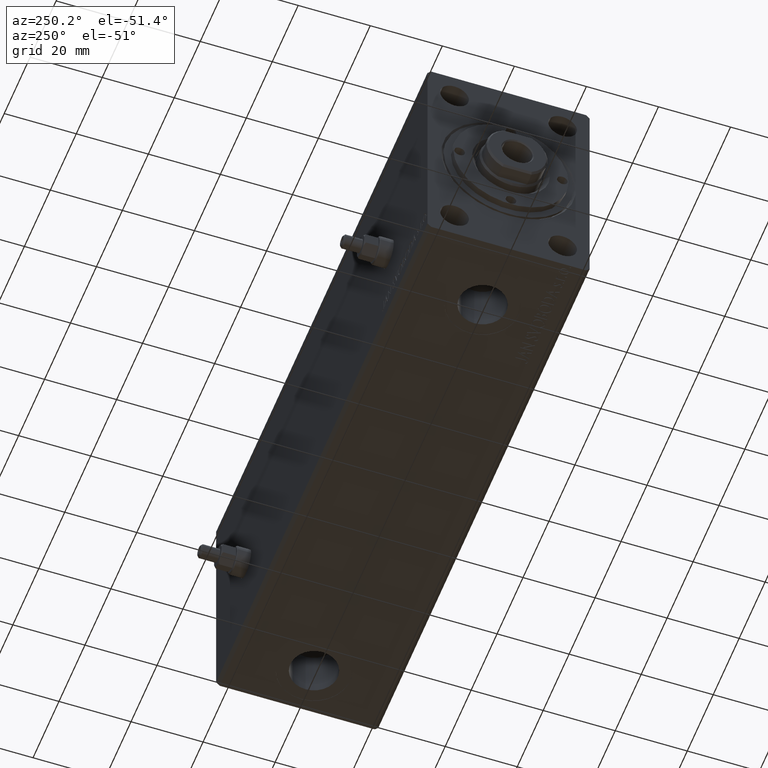
[diagram: clean part render]
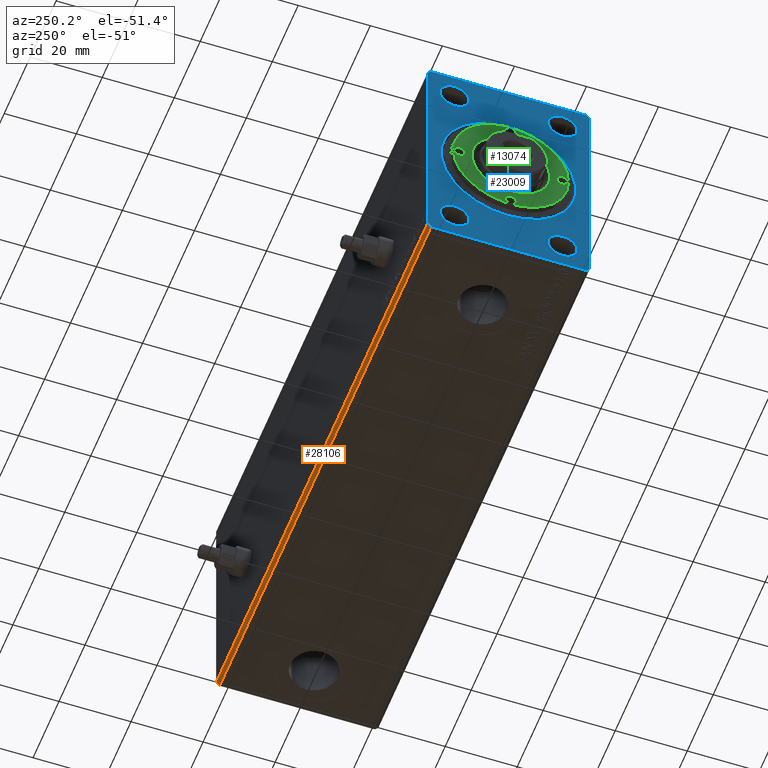
[diagram: same view with three faces highlighted in distinct colors, each labeled with its STEP entity id]
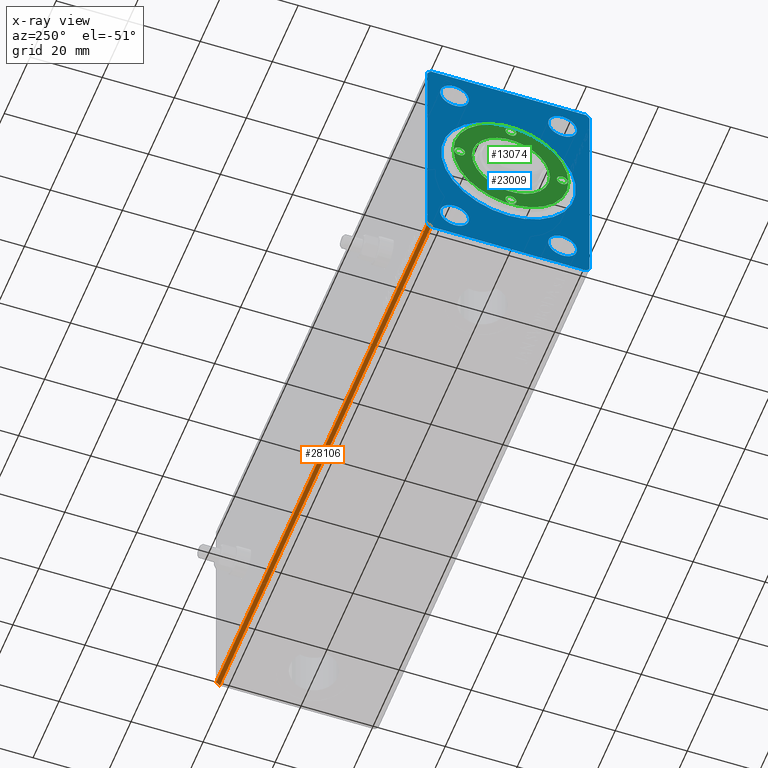
[diagram: x-ray of the same camera — body ghosted, the three highlighted faces saturated]
A machine part, auxiliary view with three faces highlighted in distinct colors.
The next image is the same camera in x-ray (body ghosted, the three faces saturated) — at least one of them is partly hidden behind the body in this view.
Their STEP definitions:

[orange] entity #28106 — the highlighted planar face has unit normal (0, -0.7071, 0.7071).
#664 = DIRECTION ( 'NONE',  ( 0.000000000000000000, -0.7071067811865475727, 0.7071067811865475727 ) ) ;
#1484 = LINE ( 'NONE', #4905, #3327 ) ;
#1808 = EDGE_CURVE ( 'NONE', #18338, #27748, #1484, .T. ) ;
#2689 = CARTESIAN_POINT ( 'NONE',  ( 0.000000000000000000, 21.49999999999999645, -32.50000000000000000 ) ) ;
#2834 = ORIENTED_EDGE ( 'NONE', *, *, #1808, .F. ) ;
#3327 = VECTOR ( 'NONE', #32790, 1000.000000000000114 ) ;
#4376 = LINE ( 'NONE', #32474, #33553 ) ;
#4905 = CARTESIAN_POINT ( 'NONE',  ( 163.0000000000000000, 21.49999999999999645, -32.50000000000000000 ) ) ;
#6110 = LINE ( 'NONE', #2689, #7008 ) ;
#7008 = VECTOR ( 'NONE', #13212, 1000.000000000000114 ) ;
#7434 = EDGE_CURVE ( 'NONE', #30496, #41775, #6110, .T. ) ;
#8503 = EDGE_LOOP ( 'NONE', ( #13450, #41674, #2834, #18356 ) ) ;
#8639 = DIRECTION ( 'NONE',  ( 0.000000000000000000, -0.7071067811865474617, -0.7071067811865474617 ) ) ;
#11695 = DIRECTION ( 'NONE',  ( -1.000000000000000000, -0.000000000000000000, -0.000000000000000000 ) ) ;
#13212 = DIRECTION ( 'NONE',  ( 0.000000000000000000, 0.7071067811865474617, 0.7071067811865474617 ) ) ;
#13375 = EDGE_CURVE ( 'NONE', #18338, #30496, #23449, .T. ) ;
#13450 = ORIENTED_EDGE ( 'NONE', *, *, #7434, .T. ) ;
#18338 = VERTEX_POINT ( 'NONE', #42154 ) ;
#18356 = ORIENTED_EDGE ( 'NONE', *, *, #13375, .T. ) ;
#19572 = DIRECTION ( 'NONE',  ( -1.000000000000000000, -0.000000000000000000, -0.000000000000000000 ) ) ;
#20258 = CARTESIAN_POINT ( 'NONE',  ( 163.0000000000000000, 22.49999999999999645, -31.50000000000000000 ) ) ;
#20318 = VECTOR ( 'NONE', #19572, 1000.000000000000000 ) ;
#21889 = CARTESIAN_POINT ( 'NONE',  ( 0.000000000000000000, 21.49999999999999645, -32.50000000000000000 ) ) ;
#23449 = LINE ( 'NONE', #37402, #20318 ) ;
#27748 = VERTEX_POINT ( 'NONE', #20258 ) ;
#28106 = ADVANCED_FACE ( 'NONE', ( #39951 ), #39498, .F. ) ;
#29229 = CARTESIAN_POINT ( 'NONE',  ( 163.0000000000000000, 21.49999999999999645, -32.50000000000000000 ) ) ;
#30496 = VERTEX_POINT ( 'NONE', #21889 ) ;
#32474 = CARTESIAN_POINT ( 'NONE',  ( 163.0000000000000000, 22.49999999999999645, -31.50000000000000000 ) ) ;
#32790 = DIRECTION ( 'NONE',  ( 0.000000000000000000, 0.7071067811865474617, 0.7071067811865474617 ) ) ;
#33553 = VECTOR ( 'NONE', #11695, 1000.000000000000000 ) ;
#37402 = CARTESIAN_POINT ( 'NONE',  ( 163.0000000000000000, 21.49999999999999645, -32.50000000000000000 ) ) ;
#39498 = PLANE ( 'NONE',  #44773 ) ;
#39951 = FACE_OUTER_BOUND ( 'NONE', #8503, .T. ) ;
#41364 = EDGE_CURVE ( 'NONE', #27748, #41775, #4376, .T. ) ;
#41674 = ORIENTED_EDGE ( 'NONE', *, *, #41364, .F. ) ;
#41775 = VERTEX_POINT ( 'NONE', #42385 ) ;
#42154 = CARTESIAN_POINT ( 'NONE',  ( 163.0000000000000000, 21.49999999999999645, -32.50000000000000000 ) ) ;
#42385 = CARTESIAN_POINT ( 'NONE',  ( 0.000000000000000000, 22.49999999999999645, -31.50000000000000000 ) ) ;
#44773 = AXIS2_PLACEMENT_3D ( 'NONE', #29229, #664, #8639 ) ;

[blue] entity #23009 — the highlighted planar face has unit normal (1, 0, 0).
#43 = LINE ( 'NONE', #30511, #8371 ) ;
#87 = EDGE_LOOP ( 'NONE', ( #25024, #16160, #17624, #20711, #13297, #37078, #29994, #3901 ) ) ;
#221 = CARTESIAN_POINT ( 'NONE',  ( 0.000000000000000000, 21.49999999999999645, 32.50000000000000000 ) ) ;
#255 = EDGE_CURVE ( 'NONE', #26955, #40361, #43, .T. ) ;
#321 = DIRECTION ( 'NONE',  ( 0.000000000000000000, 0.000000000000000000, -1.000000000000000000 ) ) ;
#484 = CIRCLE ( 'NONE', #9251, 4.000000000000000000 ) ;
#488 = LINE ( 'NONE', #11216, #2013 ) ;
#886 = DIRECTION ( 'NONE',  ( 0.000000000000000000, 0.000000000000000000, -1.000000000000000000 ) ) ;
#1151 = FACE_BOUND ( 'NONE', #20377, .T. ) ;
#1441 = LINE ( 'NONE', #15391, #44135 ) ;
#2013 = VECTOR ( 'NONE', #35453, 1000.000000000000000 ) ;
#2689 = CARTESIAN_POINT ( 'NONE',  ( 0.000000000000000000, 21.49999999999999645, -32.50000000000000000 ) ) ;
#2823 = DIRECTION ( 'NONE',  ( -1.000000000000000000, -0.000000000000000000, -0.000000000000000000 ) ) ;
#2852 = AXIS2_PLACEMENT_3D ( 'NONE', #10622, #3768, #17712 ) ;
#3053 = DIRECTION ( 'NONE',  ( -1.000000000000000000, -0.000000000000000000, -0.000000000000000000 ) ) ;
#3361 = LINE ( 'NONE', #24831, #8461 ) ;
#3478 = DIRECTION ( 'NONE',  ( 0.000000000000000000, -0.7071067811865474617, 0.7071067811865474617 ) ) ;
#3611 = CIRCLE ( 'NONE', #2852, 4.000000000000000000 ) ;
#3768 = DIRECTION ( 'NONE',  ( -1.000000000000000000, -0.000000000000000000, -0.000000000000000000 ) ) ;
#3806 = EDGE_CURVE ( 'NONE', #24019, #9859, #10566, .T. ) ;
#3846 = ORIENTED_EDGE ( 'NONE', *, *, #13266, .F. ) ;
#3901 = ORIENTED_EDGE ( 'NONE', *, *, #3971, .F. ) ;
#3971 = EDGE_CURVE ( 'NONE', #31850, #9355, #28103, .T. ) ;
#4132 = ORIENTED_EDGE ( 'NONE', *, *, #16056, .T. ) ;
#4252 = DIRECTION ( 'NONE',  ( 0.000000000000000000, 5.507058653894625853E-17, -1.000000000000000000 ) ) ;
#4309 = DIRECTION ( 'NONE',  ( 1.000000000000000000, 0.000000000000000000, 0.000000000000000000 ) ) ;
#4513 = DIRECTION ( 'NONE',  ( 0.000000000000000000, 0.000000000000000000, 1.000000000000000000 ) ) ;
#4567 = VERTEX_POINT ( 'NONE', #30986 ) ;
#4742 = VERTEX_POINT ( 'NONE', #9887 ) ;
#5034 = FACE_BOUND ( 'NONE', #10544, .T. ) ;
#5102 = AXIS2_PLACEMENT_3D ( 'NONE', #22397, #31637, #321 ) ;
#5137 = VERTEX_POINT ( 'NONE', #41613 ) ;
#5489 = PLANE ( 'NONE',  #5102 ) ;
#5714 = EDGE_CURVE ( 'NONE', #4742, #4567, #39788, .T. ) ;
#6019 = CARTESIAN_POINT ( 'NONE',  ( 3.061616997868395467E-16, 15.00000000000000355, 25.00000000000000000 ) ) ;
#6110 = LINE ( 'NONE', #2689, #7008 ) ;
#7008 = VECTOR ( 'NONE', #13212, 1000.000000000000114 ) ;
#7434 = EDGE_CURVE ( 'NONE', #30496, #41775, #6110, .T. ) ;
#7513 = EDGE_CURVE ( 'NONE', #25467, #26955, #3361, .T. ) ;
#8068 = DIRECTION ( 'NONE',  ( 0.000000000000000000, 0.000000000000000000, 1.000000000000000000 ) ) ;
#8197 = DIRECTION ( 'NONE',  ( 0.000000000000000000, 0.000000000000000000, -1.000000000000000000 ) ) ;
#8306 = CARTESIAN_POINT ( 'NONE',  ( 0.000000000000000000, -21.50000000000001421, 32.50000000000000000 ) ) ;
#8371 = VECTOR ( 'NONE', #23638, 1000.000000000000114 ) ;
#8420 = DIRECTION ( 'NONE',  ( 1.000000000000000000, 0.000000000000000000, 0.000000000000000000 ) ) ;
#8461 = VECTOR ( 'NONE', #4252, 1000.000000000000000 ) ;
#8553 = EDGE_CURVE ( 'NONE', #28303, #19467, #484, .T. ) ;
#8585 = DIRECTION ( 'NONE',  ( 0.000000000000000000, 0.000000000000000000, 1.000000000000000000 ) ) ;
#8886 = DIRECTION ( 'NONE',  ( -1.000000000000000000, -0.000000000000000000, -0.000000000000000000 ) ) ;
#8924 = FACE_BOUND ( 'NONE', #32165, .T. ) ;
#9251 = AXIS2_PLACEMENT_3D ( 'NONE', #9266, #37161, #8585 ) ;
#9266 = CARTESIAN_POINT ( 'NONE',  ( 3.061616997868395467E-16, -14.99999999999999645, -24.99999999999999645 ) ) ;
#9355 = VERTEX_POINT ( 'NONE', #10181 ) ;
#9678 = DIRECTION ( 'NONE',  ( 0.000000000000000000, 0.000000000000000000, 1.000000000000000000 ) ) ;
#9859 = VERTEX_POINT ( 'NONE', #23069 ) ;
#9887 = CARTESIAN_POINT ( 'NONE',  ( 3.061616997868395467E-16, 15.00000000000000355, 29.00000000000000000 ) ) ;
#10006 = EDGE_CURVE ( 'NONE', #37914, #21491, #31905, .T. ) ;
#10167 = CIRCLE ( 'NONE', #35720, 18.69999999999996732 ) ;
#10181 = CARTESIAN_POINT ( 'NONE',  ( 0.000000000000000000, -21.50000000000001421, 32.50000000000000000 ) ) ;
#10544 = EDGE_LOOP ( 'NONE', ( #37149, #31407 ) ) ;
#10566 = CIRCLE ( 'NONE', #44132, 4.000000000000000000 ) ;
#10622 = CARTESIAN_POINT ( 'NONE',  ( 3.061616997868395467E-16, 15.00000000000000355, 25.00000000000000000 ) ) ;
#11216 = CARTESIAN_POINT ( 'NONE',  ( 0.000000000000000000, -21.50000000000001776, -32.50000000000000711 ) ) ;
#11611 = CARTESIAN_POINT ( 'NONE',  ( 3.061616997868395467E-16, 15.00000000000000355, -24.99999999999999289 ) ) ;
#11655 = EDGE_CURVE ( 'NONE', #40361, #30496, #488, .T. ) ;
#12203 = LINE ( 'NONE', #8306, #45193 ) ;
#13212 = DIRECTION ( 'NONE',  ( 0.000000000000000000, 0.7071067811865474617, 0.7071067811865474617 ) ) ;
#13266 = EDGE_CURVE ( 'NONE', #19467, #28303, #32743, .T. ) ;
#13297 = ORIENTED_EDGE ( 'NONE', *, *, #255, .F. ) ;
#13775 = CARTESIAN_POINT ( 'NONE',  ( 3.061616997868395467E-16, -14.99999999999999645, 28.99999999999999645 ) ) ;
#13785 = EDGE_CURVE ( 'NONE', #9859, #24019, #43660, .T. ) ;
#15391 = CARTESIAN_POINT ( 'NONE',  ( 0.000000000000000000, 22.49999999999999645, -31.50000000000000000 ) ) ;
#15929 = DIRECTION ( 'NONE',  ( -1.000000000000000000, -0.000000000000000000, -0.000000000000000000 ) ) ;
#16056 = EDGE_CURVE ( 'NONE', #21158, #19188, #10167, .T. ) ;
#16160 = ORIENTED_EDGE ( 'NONE', *, *, #31122, .F. ) ;
#16479 = CARTESIAN_POINT ( 'NONE',  ( 0.000000000000000000, -22.50000000000001776, 31.50000000000000000 ) ) ;
#16537 = CARTESIAN_POINT ( 'NONE',  ( -1.084202172485504434E-16, 0.000000000000000000, 18.69999999999996732 ) ) ;
#16759 = CARTESIAN_POINT ( 'NONE',  ( 0.000000000000000000, -21.50000000000001776, -32.50000000000000711 ) ) ;
#17624 = ORIENTED_EDGE ( 'NONE', *, *, #7434, .F. ) ;
#17712 = DIRECTION ( 'NONE',  ( 0.000000000000000000, 0.000000000000000000, 1.000000000000000000 ) ) ;
#17883 = CARTESIAN_POINT ( 'NONE',  ( 3.061616997868395467E-16, 15.00000000000000355, -20.99999999999999289 ) ) ;
#18472 = ORIENTED_EDGE ( 'NONE', *, *, #8553, .F. ) ;
#18476 = CARTESIAN_POINT ( 'NONE',  ( 0.000000000000000000, 0.000000000000000000, 0.000000000000000000 ) ) ;
#18606 = EDGE_CURVE ( 'NONE', #19188, #21158, #30571, .T. ) ;
#18905 = VECTOR ( 'NONE', #3478, 1000.000000000000114 ) ;
#18915 = DIRECTION ( 'NONE',  ( -1.000000000000000000, -0.000000000000000000, -0.000000000000000000 ) ) ;
#19188 = VERTEX_POINT ( 'NONE', #16537 ) ;
#19467 = VERTEX_POINT ( 'NONE', #37061 ) ;
#19615 = CARTESIAN_POINT ( 'NONE',  ( -1.084202172485504434E-16, 2.290089514405546166E-15, -18.69999999999996732 ) ) ;
#19843 = CARTESIAN_POINT ( 'NONE',  ( 3.061616997868395467E-16, 15.00000000000000355, -24.99999999999999289 ) ) ;
#20377 = EDGE_LOOP ( 'NONE', ( #40672, #29543 ) ) ;
#20711 = ORIENTED_EDGE ( 'NONE', *, *, #11655, .F. ) ;
#21158 = VERTEX_POINT ( 'NONE', #19615 ) ;
#21491 = VERTEX_POINT ( 'NONE', #17883 ) ;
#21889 = CARTESIAN_POINT ( 'NONE',  ( 0.000000000000000000, 21.49999999999999645, -32.50000000000000000 ) ) ;
#22327 = EDGE_LOOP ( 'NONE', ( #3846, #18472 ) ) ;
#22357 = DIRECTION ( 'NONE',  ( 0.000000000000000000, 0.000000000000000000, 1.000000000000000000 ) ) ;
#22397 = CARTESIAN_POINT ( 'NONE',  ( 0.000000000000000000, 0.000000000000000000, 0.000000000000000000 ) ) ;
#22852 = FACE_BOUND ( 'NONE', #26560, .T. ) ;
#23009 = ADVANCED_FACE ( 'NONE', ( #5034, #32462, #1151, #8924, #22852, #36808 ), #5489, .F. ) ;
#23069 = CARTESIAN_POINT ( 'NONE',  ( 3.061616997868395467E-16, -14.99999999999999645, 20.99999999999999645 ) ) ;
#23248 = AXIS2_PLACEMENT_3D ( 'NONE', #43333, #15929, #29188 ) ;
#23460 = ORIENTED_EDGE ( 'NONE', *, *, #18606, .T. ) ;
#23638 = DIRECTION ( 'NONE',  ( 0.000000000000000000, 0.7071067811865451302, -0.7071067811865500152 ) ) ;
#23845 = CARTESIAN_POINT ( 'NONE',  ( 3.061616997868395467E-16, -14.99999999999999645, 24.99999999999999645 ) ) ;
#24019 = VERTEX_POINT ( 'NONE', #13775 ) ;
#24048 = LINE ( 'NONE', #32037, #18905 ) ;
#24156 = CARTESIAN_POINT ( 'NONE',  ( 3.061616997868395467E-16, -14.99999999999999645, -28.99999999999999645 ) ) ;
#24680 = CARTESIAN_POINT ( 'NONE',  ( 3.061616997868395467E-16, 15.00000000000000355, -28.99999999999999289 ) ) ;
#24831 = CARTESIAN_POINT ( 'NONE',  ( 0.000000000000000000, -22.50000000000001776, 31.50000000000000000 ) ) ;
#24886 = DIRECTION ( 'NONE',  ( 0.000000000000000000, -1.000000000000000000, 0.000000000000000000 ) ) ;
#25024 = ORIENTED_EDGE ( 'NONE', *, *, #39452, .F. ) ;
#25467 = VERTEX_POINT ( 'NONE', #16479 ) ;
#25663 = DIRECTION ( 'NONE',  ( 0.000000000000000000, 0.000000000000000000, 1.000000000000000000 ) ) ;
#26360 = DIRECTION ( 'NONE',  ( 0.000000000000000000, -0.7071067811865474617, -0.7071067811865474617 ) ) ;
#26560 = EDGE_LOOP ( 'NONE', ( #23460, #4132 ) ) ;
#26955 = VERTEX_POINT ( 'NONE', #31897 ) ;
#28103 = LINE ( 'NONE', #221, #28831 ) ;
#28303 = VERTEX_POINT ( 'NONE', #24156 ) ;
#28831 = VECTOR ( 'NONE', #24886, 1000.000000000000000 ) ;
#29188 = DIRECTION ( 'NONE',  ( 0.000000000000000000, 0.000000000000000000, 1.000000000000000000 ) ) ;
#29543 = ORIENTED_EDGE ( 'NONE', *, *, #10006, .F. ) ;
#29994 = ORIENTED_EDGE ( 'NONE', *, *, #40144, .F. ) ;
#30496 = VERTEX_POINT ( 'NONE', #21889 ) ;
#30511 = CARTESIAN_POINT ( 'NONE',  ( 0.000000000000000000, -22.50000000000001421, -31.50000000000000711 ) ) ;
#30571 = CIRCLE ( 'NONE', #42972, 18.69999999999996732 ) ;
#30676 = ORIENTED_EDGE ( 'NONE', *, *, #3806, .F. ) ;
#30986 = CARTESIAN_POINT ( 'NONE',  ( 3.061616997868395467E-16, 15.00000000000000355, 21.00000000000000000 ) ) ;
#31122 = EDGE_CURVE ( 'NONE', #41775, #5137, #1441, .T. ) ;
#31407 = ORIENTED_EDGE ( 'NONE', *, *, #40126, .F. ) ;
#31636 = CARTESIAN_POINT ( 'NONE',  ( 3.061616997868395467E-16, -14.99999999999999645, 24.99999999999999645 ) ) ;
#31637 = DIRECTION ( 'NONE',  ( 1.000000000000000000, 0.000000000000000000, 0.000000000000000000 ) ) ;
#31850 = VERTEX_POINT ( 'NONE', #32805 ) ;
#31897 = CARTESIAN_POINT ( 'NONE',  ( 0.000000000000000000, -22.50000000000001421, -31.50000000000000711 ) ) ;
#31905 = CIRCLE ( 'NONE', #37025, 4.000000000000000000 ) ;
#32037 = CARTESIAN_POINT ( 'NONE',  ( 0.000000000000000000, 22.49999999999999645, 31.50000000000000000 ) ) ;
#32165 = EDGE_LOOP ( 'NONE', ( #30676, #40436 ) ) ;
#32462 = FACE_BOUND ( 'NONE', #22327, .T. ) ;
#32743 = CIRCLE ( 'NONE', #23248, 4.000000000000000000 ) ;
#32805 = CARTESIAN_POINT ( 'NONE',  ( 0.000000000000000000, 21.49999999999999645, 32.50000000000000000 ) ) ;
#33872 = CIRCLE ( 'NONE', #40422, 4.000000000000000000 ) ;
#34937 = AXIS2_PLACEMENT_3D ( 'NONE', #23845, #3053, #37346 ) ;
#35453 = DIRECTION ( 'NONE',  ( 0.000000000000000000, 1.000000000000000000, 1.613696256722610912E-16 ) ) ;
#35720 = AXIS2_PLACEMENT_3D ( 'NONE', #18476, #4309, #886 ) ;
#35961 = DIRECTION ( 'NONE',  ( -1.000000000000000000, -0.000000000000000000, -0.000000000000000000 ) ) ;
#36808 = FACE_OUTER_BOUND ( 'NONE', #87, .T. ) ;
#37025 = AXIS2_PLACEMENT_3D ( 'NONE', #11611, #18915, #4513 ) ;
#37061 = CARTESIAN_POINT ( 'NONE',  ( 3.061616997868395467E-16, -14.99999999999999645, -20.99999999999999645 ) ) ;
#37078 = ORIENTED_EDGE ( 'NONE', *, *, #7513, .F. ) ;
#37149 = ORIENTED_EDGE ( 'NONE', *, *, #5714, .F. ) ;
#37161 = DIRECTION ( 'NONE',  ( -1.000000000000000000, -0.000000000000000000, -0.000000000000000000 ) ) ;
#37346 = DIRECTION ( 'NONE',  ( 0.000000000000000000, 0.000000000000000000, 1.000000000000000000 ) ) ;
#37914 = VERTEX_POINT ( 'NONE', #24680 ) ;
#39452 = EDGE_CURVE ( 'NONE', #5137, #31850, #24048, .T. ) ;
#39508 = CARTESIAN_POINT ( 'NONE',  ( 0.000000000000000000, 0.000000000000000000, 0.000000000000000000 ) ) ;
#39788 = CIRCLE ( 'NONE', #42719, 4.000000000000000000 ) ;
#40126 = EDGE_CURVE ( 'NONE', #4567, #4742, #3611, .T. ) ;
#40144 = EDGE_CURVE ( 'NONE', #9355, #25467, #12203, .T. ) ;
#40361 = VERTEX_POINT ( 'NONE', #16759 ) ;
#40422 = AXIS2_PLACEMENT_3D ( 'NONE', #19843, #8886, #22357 ) ;
#40436 = ORIENTED_EDGE ( 'NONE', *, *, #13785, .F. ) ;
#40672 = ORIENTED_EDGE ( 'NONE', *, *, #44565, .F. ) ;
#41613 = CARTESIAN_POINT ( 'NONE',  ( 0.000000000000000000, 22.49999999999999645, 31.50000000000000000 ) ) ;
#41775 = VERTEX_POINT ( 'NONE', #42385 ) ;
#42385 = CARTESIAN_POINT ( 'NONE',  ( 0.000000000000000000, 22.49999999999999645, -31.50000000000000000 ) ) ;
#42719 = AXIS2_PLACEMENT_3D ( 'NONE', #6019, #2823, #9678 ) ;
#42972 = AXIS2_PLACEMENT_3D ( 'NONE', #39508, #8420, #8197 ) ;
#43333 = CARTESIAN_POINT ( 'NONE',  ( 3.061616997868395467E-16, -14.99999999999999645, -24.99999999999999645 ) ) ;
#43660 = CIRCLE ( 'NONE', #34937, 4.000000000000000000 ) ;
#44132 = AXIS2_PLACEMENT_3D ( 'NONE', #31636, #35961, #8068 ) ;
#44135 = VECTOR ( 'NONE', #25663, 1000.000000000000000 ) ;
#44565 = EDGE_CURVE ( 'NONE', #21491, #37914, #33872, .T. ) ;
#45193 = VECTOR ( 'NONE', #26360, 1000.000000000000114 ) ;

[green] entity #13074 — the highlighted planar face has unit normal (-1, 0, 0).
#401 = FACE_BOUND ( 'NONE', #14155, .T. ) ;
#1109 = CARTESIAN_POINT ( 'NONE',  ( -1.499999999999996891, -14.25000000000000000, 6.999999999999999112 ) ) ;
#1666 = ORIENTED_EDGE ( 'NONE', *, *, #4928, .T. ) ;
#1862 = DIRECTION ( 'NONE',  ( 1.000000000000000000, 0.000000000000000000, 0.000000000000000000 ) ) ;
#2278 = VERTEX_POINT ( 'NONE', #37195 ) ;
#3328 = DIRECTION ( 'NONE',  ( -0.000000000000000000, -0.000000000000000000, 1.000000000000000000 ) ) ;
#3333 = CARTESIAN_POINT ( 'NONE',  ( -14.25000000000000000, 0.000000000000000000, 6.999999999999999112 ) ) ;
#3870 = DIRECTION ( 'NONE',  ( -0.000000000000000000, -0.000000000000000000, 1.000000000000000000 ) ) ;
#4014 = VERTEX_POINT ( 'NONE', #1109 ) ;
#4276 = FACE_BOUND ( 'NONE', #13410, .T. ) ;
#4401 = CARTESIAN_POINT ( 'NONE',  ( 14.25000000000000000, 0.000000000000000000, 6.999999999999999112 ) ) ;
#4557 = ORIENTED_EDGE ( 'NONE', *, *, #24966, .T. ) ;
#4743 = AXIS2_PLACEMENT_3D ( 'NONE', #33165, #19224, #1862 ) ;
#4928 = EDGE_CURVE ( 'NONE', #9865, #38810, #20811, .T. ) ;
#5032 = AXIS2_PLACEMENT_3D ( 'NONE', #4401, #22207, #42345 ) ;
#5035 = AXIS2_PLACEMENT_3D ( 'NONE', #3333, #39971, #17281 ) ;
#5200 = EDGE_CURVE ( 'NONE', #4014, #30998, #17913, .T. ) ;
#6421 = CARTESIAN_POINT ( 'NONE',  ( 15.74999999999999645, 0.000000000000000000, 6.999999999999999112 ) ) ;
#6426 = ORIENTED_EDGE ( 'NONE', *, *, #22208, .F. ) ;
#6509 = AXIS2_PLACEMENT_3D ( 'NONE', #36647, #35740, #8072 ) ;
#6538 = AXIS2_PLACEMENT_3D ( 'NONE', #39063, #7752, #21686 ) ;
#6559 = CARTESIAN_POINT ( 'NONE',  ( 10.79999999999997584, 0.000000000000000000, 6.999999999999999112 ) ) ;
#7701 = FACE_BOUND ( 'NONE', #34867, .T. ) ;
#7751 = CARTESIAN_POINT ( 'NONE',  ( 0.000000000000000000, 0.000000000000000000, 6.999999999999999112 ) ) ;
#7752 = DIRECTION ( 'NONE',  ( -0.000000000000000000, -0.000000000000000000, 1.000000000000000000 ) ) ;
#8027 = EDGE_CURVE ( 'NONE', #37129, #29267, #33304, .T. ) ;
#8036 = AXIS2_PLACEMENT_3D ( 'NONE', #10411, #3328, #17277 ) ;
#8072 = DIRECTION ( 'NONE',  ( 1.000000000000000000, 0.000000000000000000, 0.000000000000000000 ) ) ;
#8104 = CIRCLE ( 'NONE', #43887, 1.499999999999996225 ) ;
#8615 = VERTEX_POINT ( 'NONE', #13168 ) ;
#8628 = AXIS2_PLACEMENT_3D ( 'NONE', #11367, #42664, #25295 ) ;
#8736 = CIRCLE ( 'NONE', #21175, 16.00000000000000000 ) ;
#9428 = ORIENTED_EDGE ( 'NONE', *, *, #25569, .F. ) ;
#9865 = VERTEX_POINT ( 'NONE', #16226 ) ;
#9905 = DIRECTION ( 'NONE',  ( 1.000000000000000000, 0.000000000000000000, 0.000000000000000000 ) ) ;
#10411 = CARTESIAN_POINT ( 'NONE',  ( 0.000000000000000000, -14.25000000000000000, 6.999999999999999112 ) ) ;
#11367 = CARTESIAN_POINT ( 'NONE',  ( 0.000000000000000000, 0.000000000000000000, 6.999999999999999112 ) ) ;
#11869 = DIRECTION ( 'NONE',  ( 1.000000000000000000, 0.000000000000000000, 0.000000000000000000 ) ) ;
#11909 = CIRCLE ( 'NONE', #29431, 1.499999999999996225 ) ;
#13074 = ADVANCED_FACE ( 'NONE', ( #7701, #31277, #401, #4276, #14801, #27843 ), #41999, .T. ) ;
#13088 = ORIENTED_EDGE ( 'NONE', *, *, #27131, .F. ) ;
#13112 = CIRCLE ( 'NONE', #6538, 1.499999999999996891 ) ;
#13168 = CARTESIAN_POINT ( 'NONE',  ( -16.00000000000000000, 0.000000000000000000, 6.999999999999999112 ) ) ;
#13410 = EDGE_LOOP ( 'NONE', ( #6426, #18619 ) ) ;
#13605 = AXIS2_PLACEMENT_3D ( 'NONE', #41599, #3870, #31752 ) ;
#13808 = DIRECTION ( 'NONE',  ( -0.000000000000000000, -0.000000000000000000, 1.000000000000000000 ) ) ;
#14155 = EDGE_LOOP ( 'NONE', ( #17579, #9428 ) ) ;
#14183 = VERTEX_POINT ( 'NONE', #6421 ) ;
#14270 = AXIS2_PLACEMENT_3D ( 'NONE', #25744, #16155, #30097 ) ;
#14801 = FACE_BOUND ( 'NONE', #20773, .T. ) ;
#15513 = EDGE_CURVE ( 'NONE', #21379, #8615, #24034, .T. ) ;
#16155 = DIRECTION ( 'NONE',  ( -0.000000000000000000, -0.000000000000000000, 1.000000000000000000 ) ) ;
#16226 = CARTESIAN_POINT ( 'NONE',  ( -10.79999999999997584, 1.322618543079138535E-15, 6.999999999999999112 ) ) ;
#16714 = EDGE_CURVE ( 'NONE', #8615, #21379, #8736, .T. ) ;
#17277 = DIRECTION ( 'NONE',  ( 1.000000000000000000, 0.000000000000000000, 0.000000000000000000 ) ) ;
#17281 = DIRECTION ( 'NONE',  ( 1.000000000000000000, 0.000000000000000000, 0.000000000000000000 ) ) ;
#17579 = ORIENTED_EDGE ( 'NONE', *, *, #34417, .F. ) ;
#17773 = ORIENTED_EDGE ( 'NONE', *, *, #8027, .F. ) ;
#17913 = CIRCLE ( 'NONE', #14270, 1.499999999999996891 ) ;
#18619 = ORIENTED_EDGE ( 'NONE', *, *, #5200, .F. ) ;
#19224 = DIRECTION ( 'NONE',  ( -0.000000000000000000, -0.000000000000000000, -1.000000000000000000 ) ) ;
#19654 = EDGE_CURVE ( 'NONE', #31624, #27611, #30606, .T. ) ;
#19729 = CIRCLE ( 'NONE', #8036, 1.499999999999996891 ) ;
#20502 = CIRCLE ( 'NONE', #39488, 10.79999999999997584 ) ;
#20773 = EDGE_LOOP ( 'NONE', ( #4557, #1666 ) ) ;
#20811 = CIRCLE ( 'NONE', #4743, 10.79999999999997584 ) ;
#21175 = AXIS2_PLACEMENT_3D ( 'NONE', #24669, #21247, #31986 ) ;
#21247 = DIRECTION ( 'NONE',  ( 0.000000000000000000, 0.000000000000000000, 1.000000000000000000 ) ) ;
#21379 = VERTEX_POINT ( 'NONE', #28676 ) ;
#21686 = DIRECTION ( 'NONE',  ( 1.000000000000000000, 0.000000000000000000, 0.000000000000000000 ) ) ;
#21915 = DIRECTION ( 'NONE',  ( 1.000000000000000000, 0.000000000000000000, 0.000000000000000000 ) ) ;
#22207 = DIRECTION ( 'NONE',  ( -0.000000000000000000, -0.000000000000000000, 1.000000000000000000 ) ) ;
#22208 = EDGE_CURVE ( 'NONE', #30998, #4014, #19729, .T. ) ;
#24034 = CIRCLE ( 'NONE', #6509, 16.00000000000000000 ) ;
#24669 = CARTESIAN_POINT ( 'NONE',  ( 0.000000000000000000, 0.000000000000000000, 6.999999999999999112 ) ) ;
#24918 = ORIENTED_EDGE ( 'NONE', *, *, #15513, .T. ) ;
#24966 = EDGE_CURVE ( 'NONE', #38810, #9865, #20502, .T. ) ;
#25295 = DIRECTION ( 'NONE',  ( 1.000000000000000000, 0.000000000000000000, -0.000000000000000000 ) ) ;
#25569 = EDGE_CURVE ( 'NONE', #2278, #14183, #8104, .T. ) ;
#25744 = CARTESIAN_POINT ( 'NONE',  ( 0.000000000000000000, -14.25000000000000000, 6.999999999999999112 ) ) ;
#27131 = EDGE_CURVE ( 'NONE', #27611, #31624, #11909, .T. ) ;
#27611 = VERTEX_POINT ( 'NONE', #40841 ) ;
#27653 = CIRCLE ( 'NONE', #5032, 1.499999999999996225 ) ;
#27843 = FACE_OUTER_BOUND ( 'NONE', #28913, .T. ) ;
#28566 = CARTESIAN_POINT ( 'NONE',  ( -1.499999999999996891, 14.25000000000000000, 6.999999999999999112 ) ) ;
#28676 = CARTESIAN_POINT ( 'NONE',  ( 16.00000000000000000, 1.959434878635765131E-15, 6.999999999999999112 ) ) ;
#28913 = EDGE_LOOP ( 'NONE', ( #40441, #24918 ) ) ;
#29267 = VERTEX_POINT ( 'NONE', #39906 ) ;
#29431 = AXIS2_PLACEMENT_3D ( 'NONE', #41223, #13808, #9905 ) ;
#29952 = CARTESIAN_POINT ( 'NONE',  ( -12.75000000000000355, 0.000000000000000000, 6.999999999999999112 ) ) ;
#30097 = DIRECTION ( 'NONE',  ( 1.000000000000000000, 0.000000000000000000, 0.000000000000000000 ) ) ;
#30606 = CIRCLE ( 'NONE', #5035, 1.499999999999996225 ) ;
#30998 = VERTEX_POINT ( 'NONE', #34386 ) ;
#31277 = FACE_BOUND ( 'NONE', #37789, .T. ) ;
#31624 = VERTEX_POINT ( 'NONE', #29952 ) ;
#31752 = DIRECTION ( 'NONE',  ( 1.000000000000000000, 0.000000000000000000, 0.000000000000000000 ) ) ;
#31986 = DIRECTION ( 'NONE',  ( 1.000000000000000000, 0.000000000000000000, 0.000000000000000000 ) ) ;
#32660 = DIRECTION ( 'NONE',  ( -0.000000000000000000, -0.000000000000000000, 1.000000000000000000 ) ) ;
#33165 = CARTESIAN_POINT ( 'NONE',  ( 0.000000000000000000, 0.000000000000000000, 6.999999999999999112 ) ) ;
#33304 = CIRCLE ( 'NONE', #13605, 1.499999999999996891 ) ;
#34386 = CARTESIAN_POINT ( 'NONE',  ( 1.499999999999996891, -14.25000000000000000, 6.999999999999999112 ) ) ;
#34417 = EDGE_CURVE ( 'NONE', #14183, #2278, #27653, .T. ) ;
#34431 = ORIENTED_EDGE ( 'NONE', *, *, #40749, .F. ) ;
#34867 = EDGE_LOOP ( 'NONE', ( #45035, #13088 ) ) ;
#35740 = DIRECTION ( 'NONE',  ( 0.000000000000000000, 0.000000000000000000, 1.000000000000000000 ) ) ;
#36086 = DIRECTION ( 'NONE',  ( -0.000000000000000000, -0.000000000000000000, -1.000000000000000000 ) ) ;
#36647 = CARTESIAN_POINT ( 'NONE',  ( 0.000000000000000000, 0.000000000000000000, 6.999999999999999112 ) ) ;
#37129 = VERTEX_POINT ( 'NONE', #28566 ) ;
#37195 = CARTESIAN_POINT ( 'NONE',  ( 12.75000000000000355, 1.836970198721025004E-16, 6.999999999999999112 ) ) ;
#37789 = EDGE_LOOP ( 'NONE', ( #34431, #17773 ) ) ;
#38810 = VERTEX_POINT ( 'NONE', #6559 ) ;
#39063 = CARTESIAN_POINT ( 'NONE',  ( 0.000000000000000000, 14.25000000000000000, 6.999999999999999112 ) ) ;
#39488 = AXIS2_PLACEMENT_3D ( 'NONE', #7751, #36086, #21915 ) ;
#39906 = CARTESIAN_POINT ( 'NONE',  ( 1.499999999999996891, 14.25000000000000000, 6.999999999999999112 ) ) ;
#39971 = DIRECTION ( 'NONE',  ( -0.000000000000000000, -0.000000000000000000, 1.000000000000000000 ) ) ;
#40441 = ORIENTED_EDGE ( 'NONE', *, *, #16714, .T. ) ;
#40749 = EDGE_CURVE ( 'NONE', #29267, #37129, #13112, .T. ) ;
#40841 = CARTESIAN_POINT ( 'NONE',  ( -15.74999999999999645, 1.836970198721025004E-16, 6.999999999999999112 ) ) ;
#41223 = CARTESIAN_POINT ( 'NONE',  ( -14.25000000000000000, 0.000000000000000000, 6.999999999999999112 ) ) ;
#41599 = CARTESIAN_POINT ( 'NONE',  ( 0.000000000000000000, 14.25000000000000000, 6.999999999999999112 ) ) ;
#41999 = PLANE ( 'NONE',  #8628 ) ;
#42276 = CARTESIAN_POINT ( 'NONE',  ( 14.25000000000000000, 0.000000000000000000, 6.999999999999999112 ) ) ;
#42345 = DIRECTION ( 'NONE',  ( 1.000000000000000000, 0.000000000000000000, 0.000000000000000000 ) ) ;
#42664 = DIRECTION ( 'NONE',  ( 0.000000000000000000, 0.000000000000000000, 1.000000000000000000 ) ) ;
#43887 = AXIS2_PLACEMENT_3D ( 'NONE', #42276, #32660, #11869 ) ;
#45035 = ORIENTED_EDGE ( 'NONE', *, *, #19654, .F. ) ;